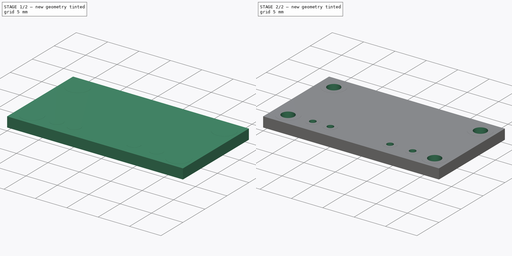
[diagram: build sequence overview — one tinted view per stage of 2, left to right]
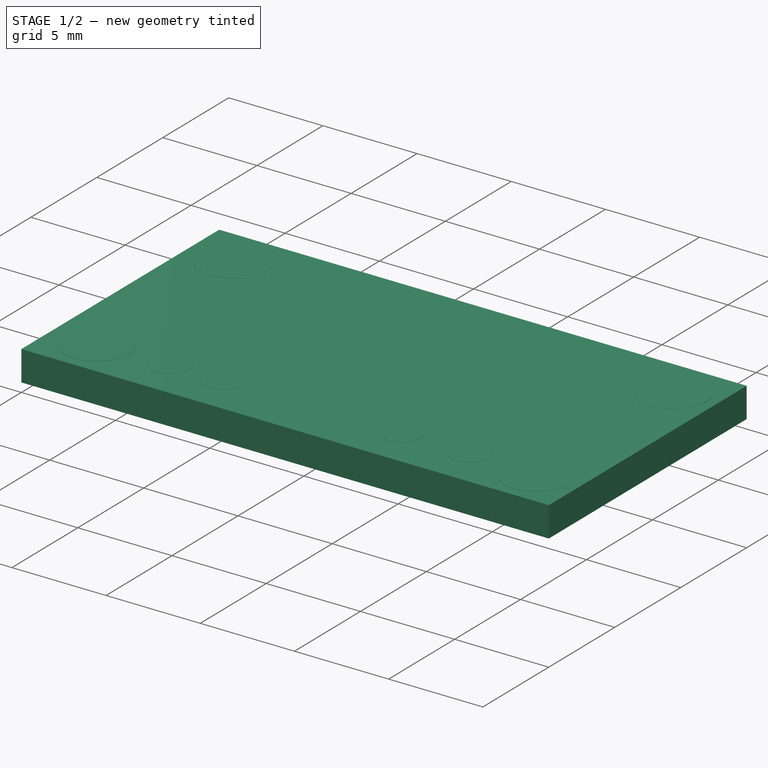
[diagram: stage 1 of 2 — iso view after this stage's code; geometry added in this stage tinted green]
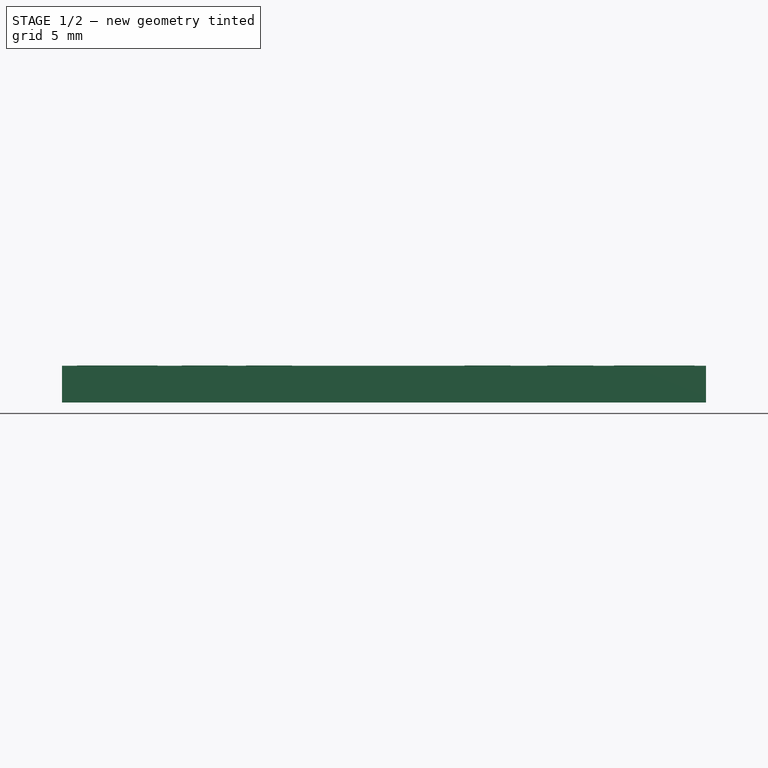
[diagram: stage 1 of 2 — front view after this stage's code; geometry added in this stage tinted green]
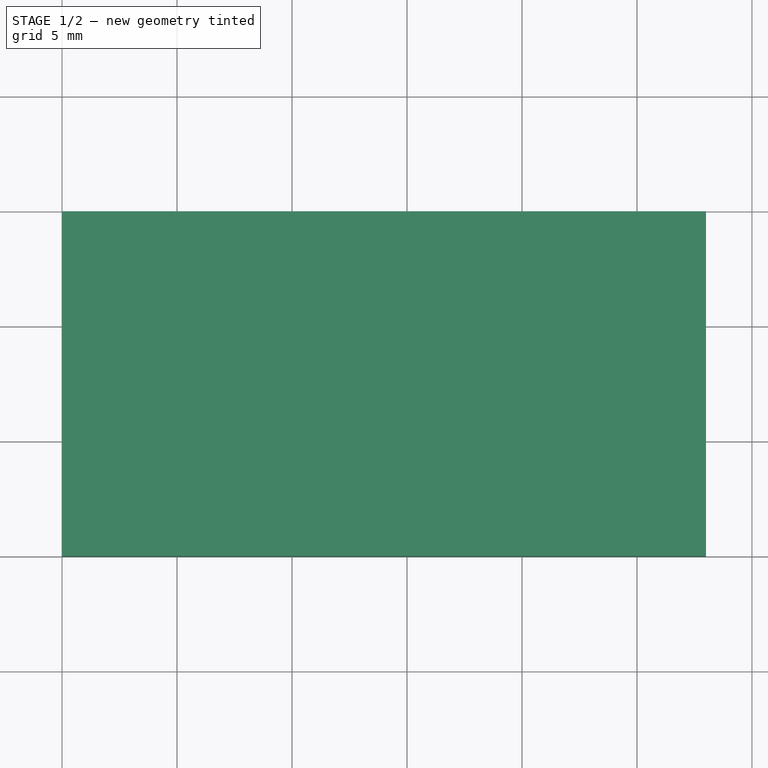
[diagram: stage 1 of 2 — top view after this stage's code; geometry added in this stage tinted green]
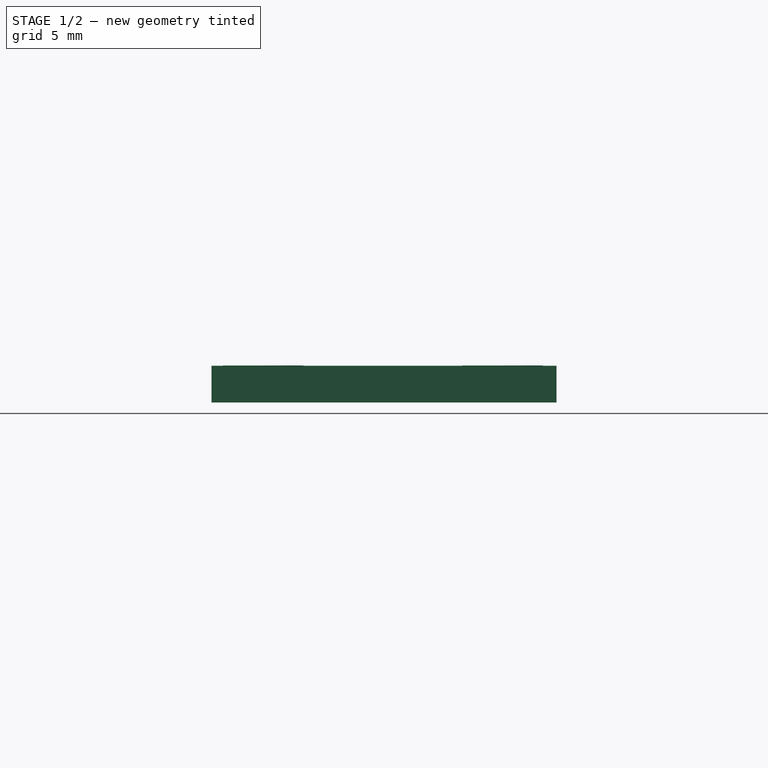
[diagram: stage 1 of 2 — right view after this stage's code; geometry added in this stage tinted green]
FCSTD DOCUMENT  (FreeCAD 0.15R4671 (Git))
Label: TPS61030
License: All rights reserved
LicenseURL: http://en.wikipedia.org/wiki/All_rights_reserved
objects: Sketcher::SketchObject×2, Part::Box×1, PartDesign::Pad×1, PartDesign::Pocket×1
note: 7 computed .brp shape members not serialized (recipe doc carries the construction recipe); baked Part::Feature solids carry a one-line shape summary decoded from their .brp

FEATURE [Part::Box] Box  label="Würfel"
  Height = 1.6
  Length = 28
  Width = 15
FEATURE [Sketcher::SketchObject] Sketch
  Placement = pos=(0,0,1.6) rot=(0,0,1;0rad)
  Support = -> Box [Face6]
  sketch-geometry (8):
    g0: Circle CenterX=2.4 CenterY=2.25 CenterZ=0 NormalX=0 NormalY=0 NormalZ=1 Radius=1.75
    g1: Circle CenterX=25.75 CenterY=2.25 CenterZ=0 NormalX=0 NormalY=0 NormalZ=1 Radius=1.75
    g2: Circle CenterX=2.4 CenterY=12.65 CenterZ=0 NormalX=0 NormalY=0 NormalZ=1 Radius=1.75
    g3: Circle CenterX=25.75 CenterY=12.65 CenterZ=0 NormalX=0 NormalY=0 NormalZ=1 Radius=1.75
    g4: Circle CenterX=6.2 CenterY=2.45 CenterZ=0 NormalX=0 NormalY=0 NormalZ=1 Radius=1
    g5: Circle CenterX=9 CenterY=2.45 CenterZ=0 NormalX=0 NormalY=0 NormalZ=1 Radius=1
    g6: Circle CenterX=18.5 CenterY=2.45 CenterZ=0 NormalX=0 NormalY=0 NormalZ=1 Radius=1
    g7: Circle CenterX=22.1 CenterY=2.45 CenterZ=0 NormalX=0 NormalY=0 NormalZ=1 Radius=1
  constraints (24):
    c: Radius(g0) = 1.75
    c: DistanceX(g-1,g0) = 2.4
    c: DistanceY(g-1,g0) = 2.25
    c: DistanceX(g-1,g1) = 25.75
    c: Equal(g0,g1)
    c: DistanceY(g0,g1) = 0
    c: Equal(g0,g2)
    c: Equal(g2,g3)
    c: DistanceX(g0,g2) = 0
    c: DistanceX(g1,g3) = 0
    c: DistanceY(g2,g3) = 0
    c: DistanceY(g-1,g2) = 12.65
    c: Radius(g4) = 1
    c: Equal(g4,g5)
    c: Equal(g5,g6)
    c: Equal(g6,g7)
    c: DistanceY(g4,g5) = 0
    c: DistanceY(g5,g6) = 0
    c: DistanceY(g6,g7) = 0
    c: DistanceX(g6,g7) = 3.6
    c: DistanceX(g4,g5) = 2.8
    c: DistanceX(g-1,g6) = 18.5
    c: DistanceX(g-1,g4) = 6.2
    c: DistanceY(g-1,g4) = 2.45
FEATURE [PartDesign::Pad] Pad
  Length = 0.01
  Length2 = 100
  Sketch = -> Sketch
  Type = 0
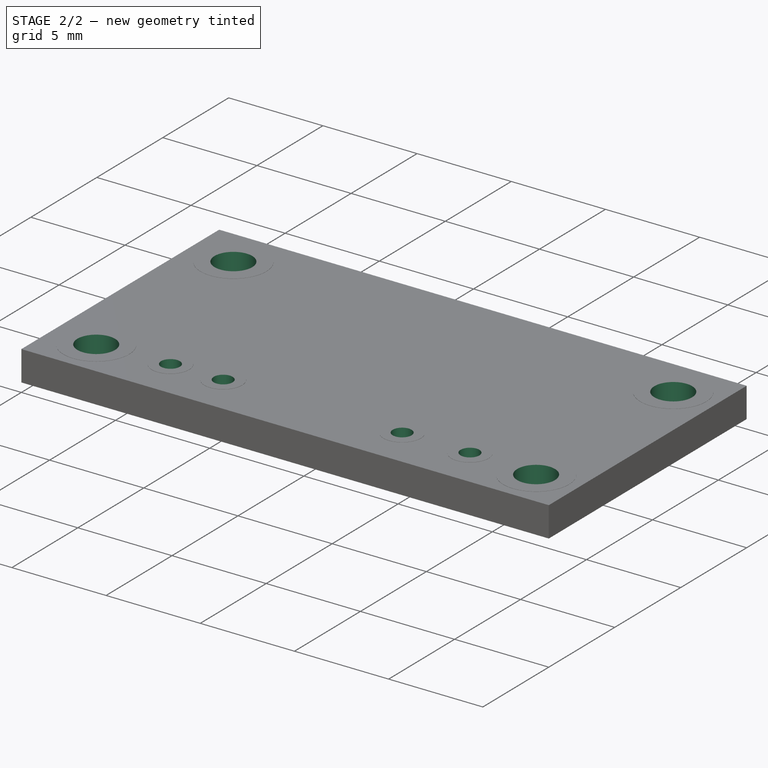
[diagram: stage 2 of 2 — iso view after this stage's code; geometry added in this stage tinted green]
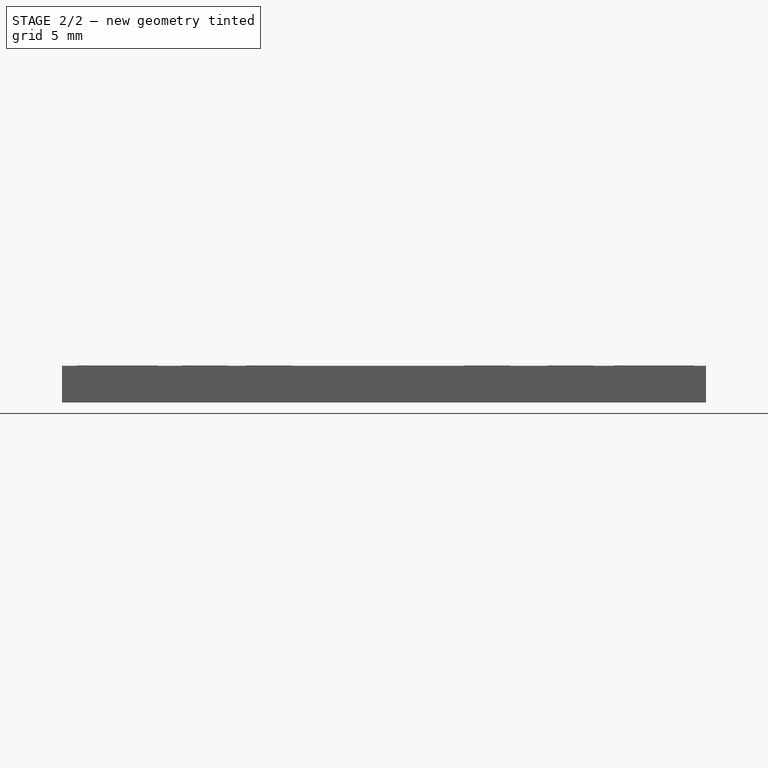
[diagram: stage 2 of 2 — front view after this stage's code; geometry added in this stage tinted green]
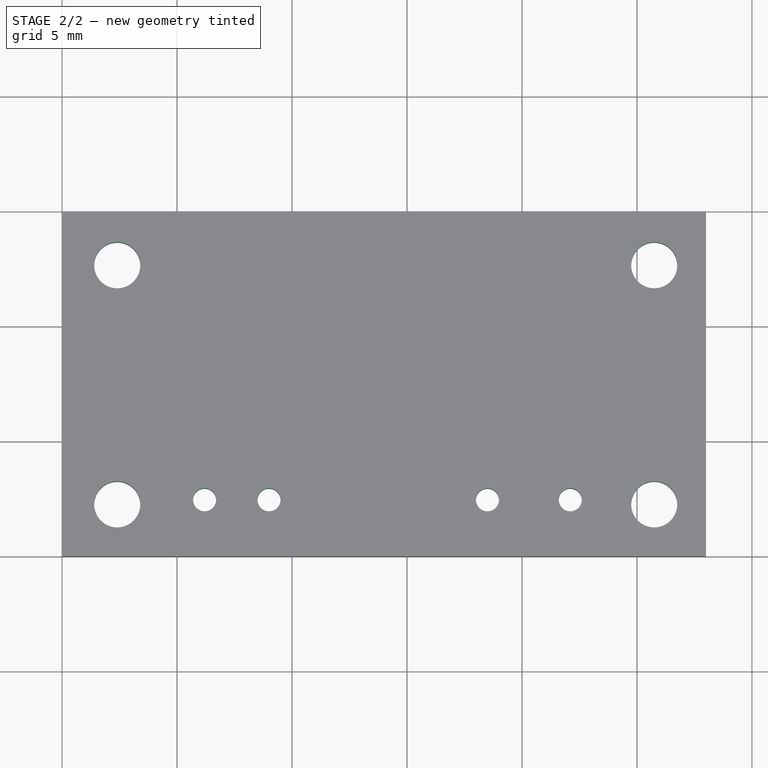
[diagram: stage 2 of 2 — top view after this stage's code; geometry added in this stage tinted green]
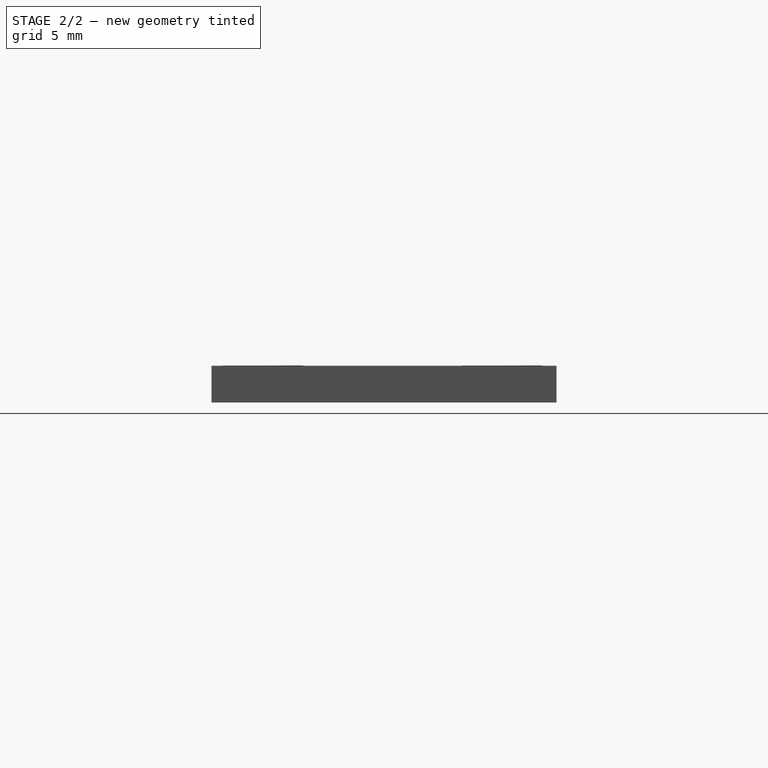
[diagram: stage 2 of 2 — right view after this stage's code; geometry added in this stage tinted green]
FEATURE [Sketcher::SketchObject] Sketch001
  ExternalGeometry = -> [Pad]
  Placement = pos=(0,0,1.61) rot=(0,0,1;0rad)
  Support = -> Pad [Face15]
  sketch-geometry (8):
    g0: Circle CenterX=2.4 CenterY=2.25 CenterZ=0 NormalX=0 NormalY=0 NormalZ=1 Radius=1
    g1: Circle CenterX=2.4 CenterY=12.65 CenterZ=0 NormalX=0 NormalY=0 NormalZ=1 Radius=1
    g2: Circle CenterX=25.75 CenterY=12.65 CenterZ=0 NormalX=0 NormalY=0 NormalZ=1 Radius=1
    g3: Circle CenterX=25.75 CenterY=2.25 CenterZ=0 NormalX=0 NormalY=0 NormalZ=1 Radius=1
    g4: Circle CenterX=6.2 CenterY=2.45 CenterZ=0 NormalX=0 NormalY=0 NormalZ=1 Radius=0.5
    g5: Circle CenterX=9 CenterY=2.45 CenterZ=0 NormalX=0 NormalY=0 NormalZ=1 Radius=0.5
    g6: Circle CenterX=18.5 CenterY=2.45 CenterZ=0 NormalX=0 NormalY=0 NormalZ=1 Radius=0.5
    g7: Circle CenterX=22.1 CenterY=2.45 CenterZ=0 NormalX=0 NormalY=0 NormalZ=1 Radius=0.5
  constraints (16):
    c: Coincident(g0,g-4)
    c: Coincident(g1,g-3)
    c: Coincident(g2,g-10)
    c: Coincident(g3,g-9)
    c: Coincident(g4,g-5)
    c: Coincident(g5,g-6)
    c: Coincident(g6,g-7)
    c: Coincident(g7,g-8)
    c: Radius(g0) = 1
    c: Equal(g0,g1)
    c: Equal(g1,g2)
    c: Equal(g2,g3)
    c: Equal(g4,g5)
    c: Equal(g5,g6)
    c: Equal(g6,g7)
    c: Radius(g4) = 0.5
FEATURE [PartDesign::Pocket] Pocket
  Length = 5
  Sketch = -> Sketch001
  Type = 1
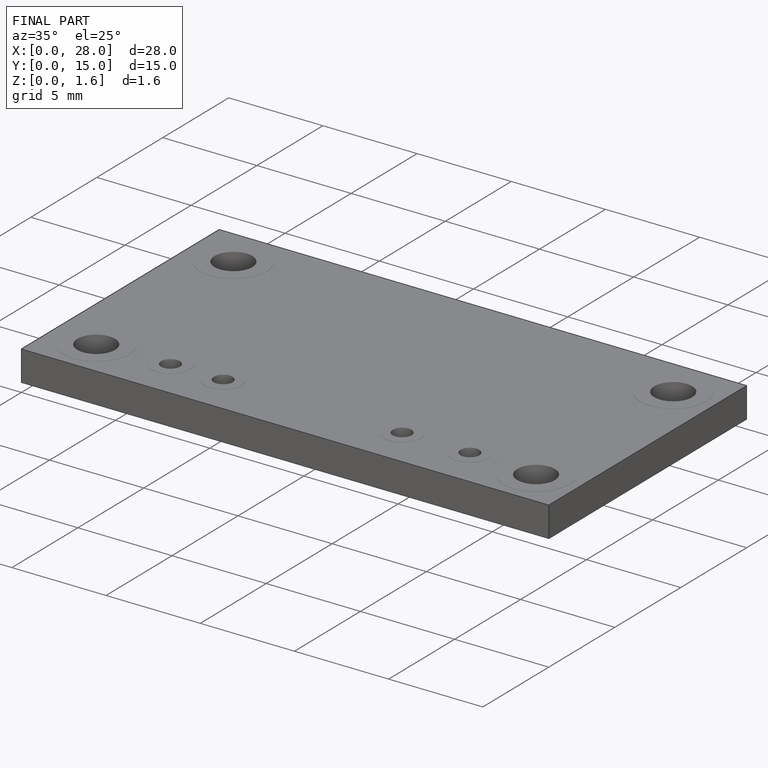
[diagram: finished part — iso view with bounding-box wireframe]
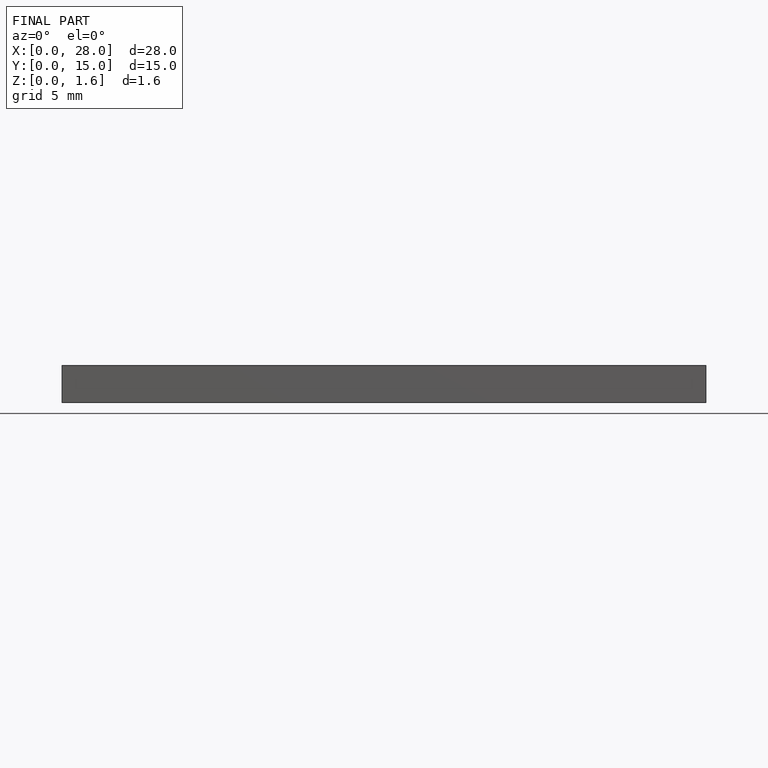
[diagram: finished part — front view with bounding-box wireframe]
